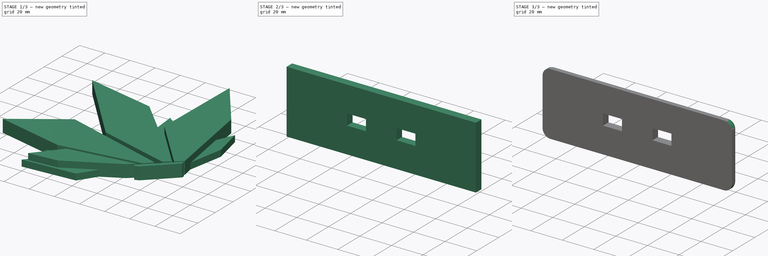
[diagram: build sequence overview — one tinted view per stage of 3, left to right]
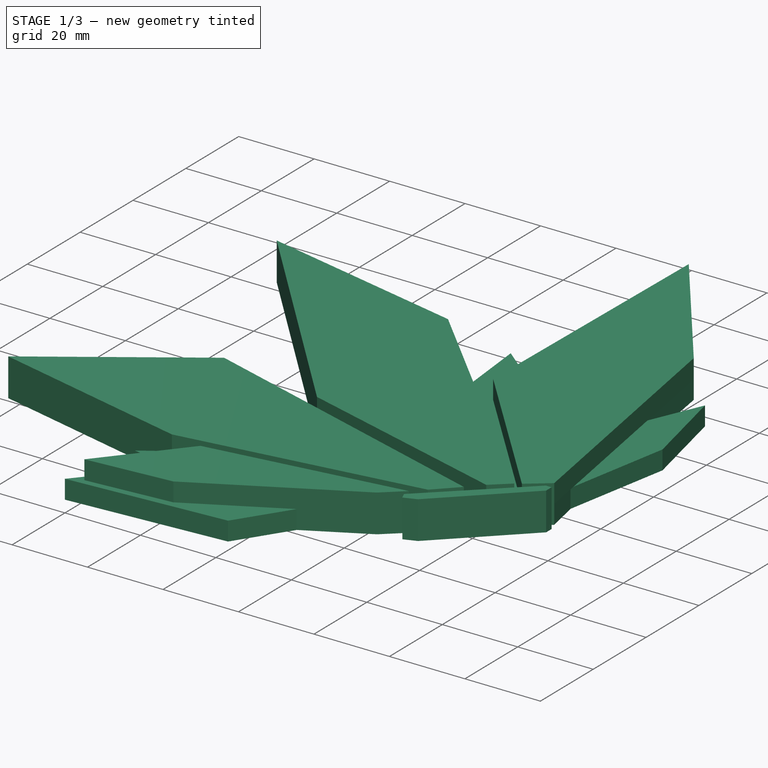
[diagram: stage 1 of 3 — iso view after this stage's code; geometry added in this stage tinted green]
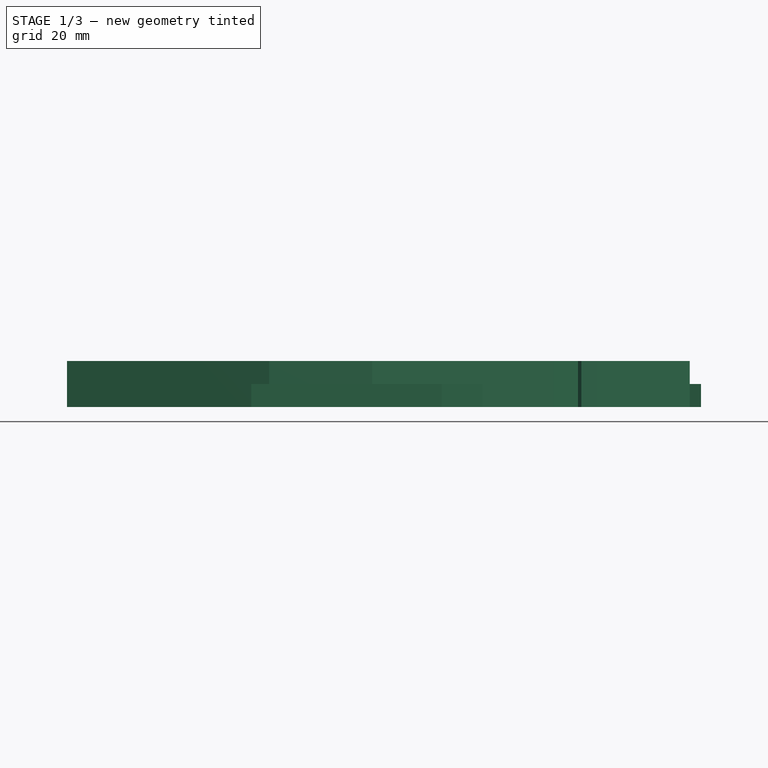
[diagram: stage 1 of 3 — front view after this stage's code; geometry added in this stage tinted green]
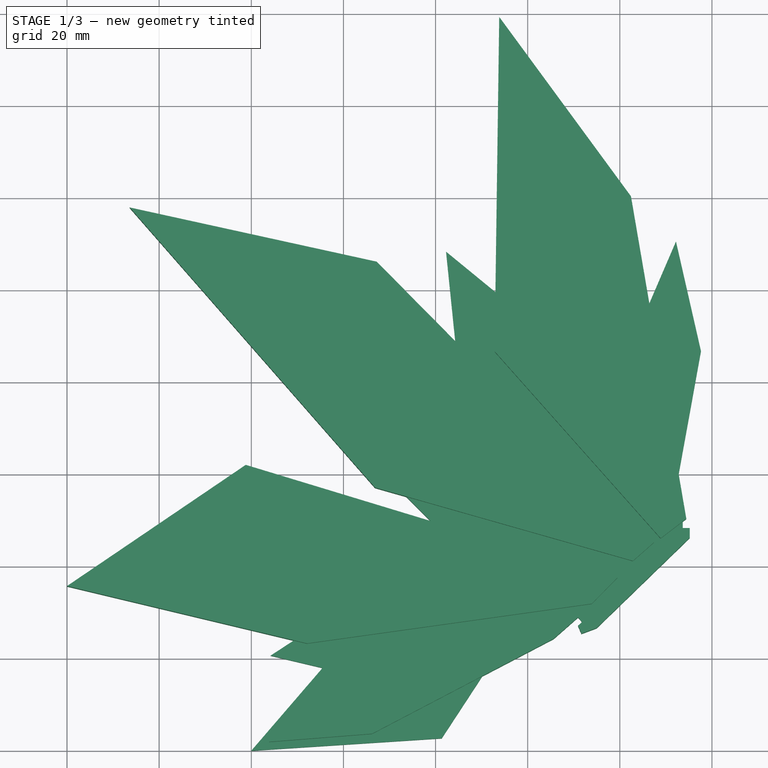
[diagram: stage 1 of 3 — top view after this stage's code; geometry added in this stage tinted green]
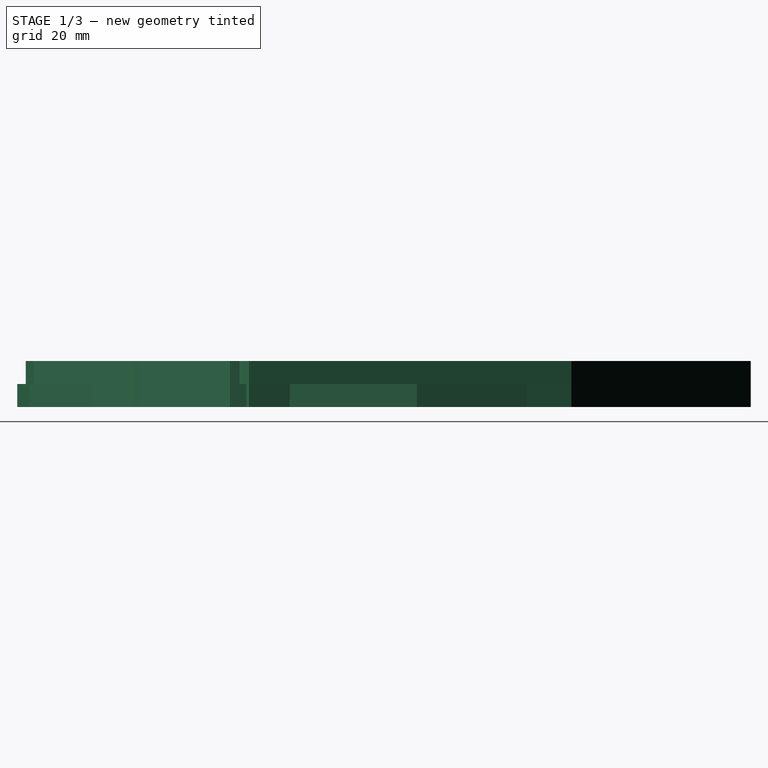
[diagram: stage 1 of 3 — right view after this stage's code; geometry added in this stage tinted green]
FCSTD DOCUMENT  (FreeCAD 0.21R33771 (Git))
Label: Project_Wingman_Cromson1_Emblem
License: All rights reserved
LicenseURL: https://en.wikipedia.org/wiki/All_rights_reserved
objects: Sketcher::SketchObject×4, PartDesign::Pad×4, PartDesign::Body×2, PartDesign::SubShapeBinder×2, PartDesign::Fillet×2, Image::ImagePlane×1
note: 20 computed .brp shape members not serialized (recipe doc carries the construction recipe); baked Part::Feature solids carry a one-line shape summary decoded from their .brp

FEATURE [Image::ImagePlane] Crimson_1_emblem
  Placement = pos=(34.5,79.5,0) rot=(0,0,1;0rad)
  XSize = 159.259
  YSize = 159.259
FEATURE [Sketcher::SketchObject] Sketch
  FullyConstrained = true
  MapMode = 5
  Support = -> [XY_Plane]
  sketch-geometry (33):
    g0: LineSegment StartX=1.8e-15 StartY=0 StartZ=0 EndX=41.3422 EndY=2.69522 EndZ=0
    g1: LineSegment StartX=41.3422 StartY=2.69522 StartZ=0 EndX=50.1306 EndY=16.1253 EndZ=0
    g2: LineSegment StartX=50.1306 StartY=16.1253 StartZ=0 EndX=65.6424 EndY=24.2484 EndZ=0
    g3: LineSegment StartX=65.6424 StartY=24.2484 StartZ=0 EndX=70.9471 EndY=28.9071 EndZ=0
    g4: LineSegment StartX=70.9471 StartY=28.9071 StartZ=0 EndX=71.8248 EndY=27.9078 EndZ=0
    g5: LineSegment StartX=71.8248 StartY=27.9078 StartZ=0 EndX=70.9259 EndY=27.0536 EndZ=0
    g6: LineSegment StartX=70.9259 StartY=27.0536 StartZ=0 EndX=71.6687 EndY=25.3484 EndZ=0
    g7: LineSegment StartX=71.6687 StartY=25.3484 StartZ=0 EndX=74.968 EndY=26.5754 EndZ=0
    g8: LineSegment StartX=74.968 StartY=26.5754 StartZ=0 EndX=95.187 EndY=46.1758 EndZ=0
    g9: LineSegment StartX=95.187 StartY=46.1758 StartZ=0 EndX=95.187 EndY=48.2558 EndZ=0
    g10: LineSegment StartX=95.187 StartY=48.2558 StartZ=0 EndX=93.667 EndY=48.2558 EndZ=0
    g11: LineSegment StartX=93.667 StartY=48.2558 StartZ=0 EndX=93.667 EndY=49.7358 EndZ=0
    g12: LineSegment StartX=93.667 StartY=49.7358 StartZ=0 EndX=94.436 EndY=50.3105 EndZ=0
    g13: LineSegment StartX=94.436 StartY=50.3105 StartZ=0 EndX=92.6104 EndY=59.1029 EndZ=0
    g14: LineSegment StartX=92.6104 StartY=59.1029 StartZ=0 EndX=97.622 EndY=86.7626 EndZ=0
    g15: LineSegment StartX=97.622 StartY=86.7626 StartZ=0 EndX=92.1952 EndY=110.572 EndZ=0
    g16: LineSegment StartX=92.1952 StartY=110.572 StartZ=0 EndX=86.2337 EndY=96.7094 EndZ=0
    g17: LineSegment StartX=86.2337 StartY=96.7094 StartZ=0 EndX=82.4223 EndY=120.293 EndZ=0
    g18: LineSegment StartX=82.4223 StartY=120.293 StartZ=0 EndX=53.823 EndY=159.241 EndZ=0
    g19: LineSegment StartX=53.823 StartY=159.241 StartZ=0 EndX=53.0003 EndY=99.5766 EndZ=0
    g20: LineSegment StartX=53.0003 StartY=99.5766 StartZ=0 EndX=42.2842 EndY=108.351 EndZ=0
    g21: LineSegment StartX=42.2842 StartY=108.351 StartZ=0 EndX=44.2911 EndY=88.7633 EndZ=0
    g22: LineSegment StartX=44.2911 StartY=88.7633 StartZ=0 EndX=27.2329 EndY=106.098 EndZ=0
    g23: LineSegment StartX=27.2329 StartY=106.098 StartZ=0 EndX=-26.4101 EndY=117.872 EndZ=0
    g24: LineSegment StartX=-26.4101 StartY=117.872 StartZ=0 EndX=26.8556 EndY=57.0487 EndZ=0
    g25: LineSegment StartX=26.8556 StartY=57.0487 StartZ=0 EndX=33.6368 EndY=55.1209 EndZ=0
    g26: LineSegment StartX=33.6368 StartY=55.1209 StartZ=0 EndX=38.9971 EndY=49.7756 EndZ=0
    g27: LineSegment StartX=38.9971 StartY=49.7756 StartZ=0 EndX=-1.20076 EndY=61.981 EndZ=0
    g28: LineSegment StartX=-1.20076 StartY=61.981 StartZ=0 EndX=-40.0019 EndY=35.6711 EndZ=0
    g29: LineSegment StartX=-40.0019 StartY=35.6711 StartZ=0 EndX=9.18116 EndY=23.9087 EndZ=0
    g30: LineSegment StartX=9.18116 StartY=23.9087 StartZ=0 EndX=4.17274 EndY=20.6412 EndZ=0
    g31: LineSegment StartX=4.17274 StartY=20.6412 StartZ=0 EndX=15.464 EndY=17.9659 EndZ=0
    g32: LineSegment StartX=15.464 StartY=17.9659 StartZ=0 EndX=1.8e-15 EndY=0 EndZ=0
  constraints (98):
    c: Coincident(g-1,g0)
    c: Coincident(g0,g1)
    c: Coincident(g1,g2)
    c: Coincident(g2,g3)
    c: Coincident(g3,g4)
    c: Coincident(g4,g5)
    c: Coincident(g5,g6)
    c: Coincident(g6,g7)
    c: Coincident(g7,g8)
    c: Coincident(g8,g9)
    c: Vertical(g9)
    c: Coincident(g9,g10)
    c: Horizontal(g10)
    c: Coincident(g10,g11)
    c: Vertical(g11)
    c: Coincident(g11,g12)
    c: Coincident(g12,g13)
    c: Coincident(g13,g14)
    c: Coincident(g14,g15)
    c: Coincident(g15,g16)
    c: Coincident(g16,g17)
    c: Coincident(g17,g18)
    c: Coincident(g18,g19)
    c: Coincident(g19,g20)
    c: Coincident(g20,g21)
    c: Coincident(g21,g22)
    c: Coincident(g22,g23)
    c: Coincident(g23,g24)
    c: Coincident(g24,g25)
    c: Coincident(g25,g26)
    c: Coincident(g26,g27)
    c: Coincident(g27,g28)
    c: Coincident(g28,g29)
    c: Coincident(g29,g30)
    c: Coincident(g30,g31)
    c: Coincident(g31,g32)
    c: Coincident(g32,g0)
    c: Angle(g3,g4) = 1.5708
    c: Angle(g6,g5) = 1.91986
    c: Angle(g7,g6) = 1.6256
    c: Angle(g8,g7) = 2.72778
    c: Angle(g9,g8) = 2.34066
    c: Angle(g11,g12) = 2.21255
    c: Angle(g13,g12) = 2.00783
    c: Angle(g3,g2) = 2.90336
    c: Angle(g1,g2) = 2.63265
    c: Angle(g1,g0) = 2.21535
    c: Angle(g0,g32) = 0.794997
    c: Angle(g31,g32) = 1.09275
    c: Angle(g31,g30) = 0.810705
    c: Angle(g29,g30) = 0.8128
    c: Angle(g29,g28) = 0.830602
    c: Angle(g23,g22) = 2.56424
    c: Angle(g21,g22) = 0.675268
    c: Angle(g21,g20) = 0.782606
    c: Angle(g19,g20) = 0.898495
    c: Angle(g19,g18) = 0.647168
    c: Angle(g18,g17) = 2.66843
    c: Angle(g16,g17) = 0.566359
    c: Angle(g16,g15) = 0.630238
    c: Angle(g15,g14) = 2.73825
    c: Angle(g13,g14) = 2.75762
    c: Distance(g0) = 41.43
    c: Distance(g1) = 16.05
    c: Distance(g2) = 17.51
    c: Distance(g3) = 7.06
    c: Distance(g4) = 1.33
    c: Distance(g5) = 1.24
    c: Distance(g6) = 1.86
    c: Distance(g7) = 3.52
    c: Distance(g8) = 28.16
    c: Distance(g9) = 2.08
    c: Distance(g10) = 1.52
    c: Distance(g11) = 1.48
    c: Distance(g12) = 0.96
    c: Distance(g13) = 8.98
    c: Distance(g14) = 28.11
    c: Distance(g15) = 24.42
    c: Distance(g17) = 23.89
    c: Distance(g16) = 15.09
    c: Distance(g18) = 48.32
    c: Distance(g19) = 59.67
    c: Distance(g20) = 13.85
    c: Distance(g21) = 19.69
    c: Distance(g22) = 24.32
    c: Distance(g23) = 54.92
    c: Distance(g28) = 46.88
    c: Distance(g29) = 50.57
    c: Distance(g30) = 5.98
    c: Angle(g28,g27) = 2.25095
    c: Distance(g27) = 42.01
    c: Distance(g24) = 80.85
    c: Angle(g24,g23) = 0.635474
    c: Angle(g25,g26) = 2.63457
    c: Angle(g26,g27) = 0.489216
    c: Distance(g26) = 7.57
    c: Distance(g25) = 7.05
    c: Angle(g25,g24) = 2.56703
FEATURE [PartDesign::Pad] Pad  label="MainBody"
  Direction = (0,0,1)
  Length = 5
  Length2 = 10
  Profile = -> Sketch
  ReferenceAxis = -> Sketch [N_Axis]
  Type = 0
FEATURE [Sketcher::SketchObject] Sketch001
  ExternalGeometry = -> [Pad]
  FullyConstrained = true
  MapMode = 5
  Placement = pos=(0,0,5) rot=(0,0,1;0rad)
  Support = -> [Pad]
  sketch-geometry (26):
    g0: LineSegment StartX=93.667 StartY=48.2558 StartZ=0 EndX=70.9259 EndY=27.0536 EndZ=0
    g1: LineSegment StartX=70.9259 StartY=27.0536 StartZ=0 EndX=71.6687 EndY=25.3484 EndZ=0
    g2: LineSegment StartX=71.6687 StartY=25.3484 StartZ=0 EndX=74.968 EndY=26.5754 EndZ=0
    g3: LineSegment StartX=74.968 StartY=26.5754 StartZ=0 EndX=95.187 EndY=46.1758 EndZ=0
    g4: LineSegment StartX=95.187 StartY=46.1758 StartZ=0 EndX=95.187 EndY=48.2558 EndZ=0
    g5: LineSegment StartX=95.187 StartY=48.2558 StartZ=0 EndX=93.667 EndY=48.2558 EndZ=0
    g6: LineSegment StartX=65.6424 StartY=24.2484 StartZ=0 EndX=26.2207 EndY=3.60423 EndZ=0
    g7: LineSegment StartX=26.2207 StartY=3.60423 StartZ=0 EndX=3.85957 EndY=1.8483 EndZ=0
    g8: LineSegment StartX=3.85957 StartY=1.8483 StartZ=0 EndX=20.533 EndY=21.9673 EndZ=0
    g9: LineSegment StartX=20.533 StartY=21.9673 StartZ=0 EndX=70.9471 EndY=28.9071 EndZ=0
    g10: LineSegment StartX=70.9471 StartY=28.9071 StartZ=0 EndX=65.6424 EndY=24.2484 EndZ=0
    g11: LineSegment StartX=-1.20076 StartY=61.981 StartZ=0 EndX=79.482 EndY=37.483 EndZ=0
    g12: LineSegment StartX=-1.20076 StartY=61.981 StartZ=0 EndX=-40.0019 EndY=35.6711 EndZ=0
    g13: LineSegment StartX=-40.0019 StartY=35.6711 StartZ=0 EndX=12.0989 EndY=23.2109 EndZ=0
    g14: LineSegment StartX=12.0989 StartY=23.2109 StartZ=0 EndX=73.9001 EndY=31.8305 EndZ=0
    g15: LineSegment StartX=73.9001 StartY=31.8305 StartZ=0 EndX=79.482 EndY=37.483 EndZ=0
    g16: LineSegment StartX=87.4341 StartY=45.1737 StartZ=0 EndX=27.2329 EndY=106.098 EndZ=0
    g17: LineSegment StartX=27.2329 StartY=106.098 StartZ=0 EndX=-26.4101 EndY=117.872 EndZ=0
    g18: LineSegment StartX=-26.4101 StartY=117.872 StartZ=0 EndX=26.8556 EndY=57.0487 EndZ=0
    g19: LineSegment StartX=26.8556 StartY=57.0487 StartZ=0 EndX=82.8469 EndY=41.1309 EndZ=0
    g20: LineSegment StartX=87.4341 StartY=45.1737 StartZ=0 EndX=82.8469 EndY=41.1309 EndZ=0
    g21: LineSegment StartX=94.436 StartY=50.3105 StartZ=0 EndX=82.4223 EndY=120.293 EndZ=0
    g22: LineSegment StartX=82.4223 StartY=120.293 StartZ=0 EndX=53.823 EndY=159.241 EndZ=0
    g23: LineSegment StartX=53.823 StartY=159.241 StartZ=0 EndX=52.8216 EndY=86.6178 EndZ=0
    g24: LineSegment StartX=52.8216 StartY=86.6178 StartZ=0 EndX=88.8641 EndY=46.0365 EndZ=0
    g25: LineSegment StartX=88.8641 StartY=46.0365 StartZ=0 EndX=94.436 EndY=50.3105 EndZ=0
  constraints (62):
    c: Coincident(g-15,g0)
    c: Coincident(g0,g-11)
    c: Coincident(g0,g1)
    c: Coincident(g1,g-12)
    c: Coincident(g1,g2)
    c: Coincident(g2,g-13)
    c: Coincident(g2,g3)
    c: Coincident(g3,g-14)
    c: Coincident(g3,g4)
    c: Coincident(g4,g-15)
    c: Coincident(g4,g5)
    c: Coincident(g5,g0)
    c: Coincident(g6,g-10)
    c: PointOnObject(g-10,g6)
    c: Coincident(g6,g7)
    c: Coincident(g7,g8)
    c: Coincident(g8,g9)
    c: Coincident(g9,g10)
    c: Coincident(g10,g6)
    c: Coincident(g-8,g11)
    c: Coincident(g11,g12)
    c: Coincident(g12,g-9)
    c: Coincident(g12,g13)
    c: Coincident(g13,g14)
    c: PointOnObject(g-9,g13)
    c: Coincident(g15,g14)
    c: Coincident(g11,g15)
    c: PointOnObject(g-7,g11)
    c: Angle(g6,g7) = 2.73755
    c: Angle(g7,g8) = 0.800408
    c: Distance(g6) = 44.5
    c: Distance(g7) = 22.43
    c: Distance(g8) = 26.13
    c: Distance(g13) = 53.57
    c: Angle(g14,g13) = 2.76827
    c: Angle(g11,g15) = 1.08647
    c: Distance(g11) = 84.32
    c: Coincident(g16,g-4)
    c: Coincident(g16,g17)
    c: Coincident(g17,g-5)
    c: Coincident(g17,g18)
    c: Coincident(g18,g-6)
    c: Coincident(g19,g18)
    c: Coincident(g20,g16)
    c: Coincident(g20,g19)
    c: PointOnObject(g-6,g19)
    c: Distance(g16) = 85.65
    c: Distance(g19) = 58.21
    c: Angle(g20,g19) = 2.14222
    c: Coincident(g21,g-18)
    c: Coincident(g21,g-17)
    c: Coincident(g21,g22)
    c: Coincident(g22,g-17)
    c: Coincident(g22,g23)
    c: Coincident(g23,g24)
    c: Coincident(g24,g25)
    c: Coincident(g25,g21)
    c: PointOnObject(g-16,g23)
    c: Angle(g24,g23) = 2.40157
    c: Angle(g25,g24) = 1.6427
    c: Distance(g23) = 72.63
    c: Coincident(g9,g-19)
FEATURE [PartDesign::Pad] Pad001  label="FrontBody"
  BaseFeature = -> Pad
  Direction = (0,0,1)
  Length = 5
  Length2 = 10
  Profile = -> Sketch001
  ReferenceAxis = -> Sketch001 [N_Axis]
  Type = 0
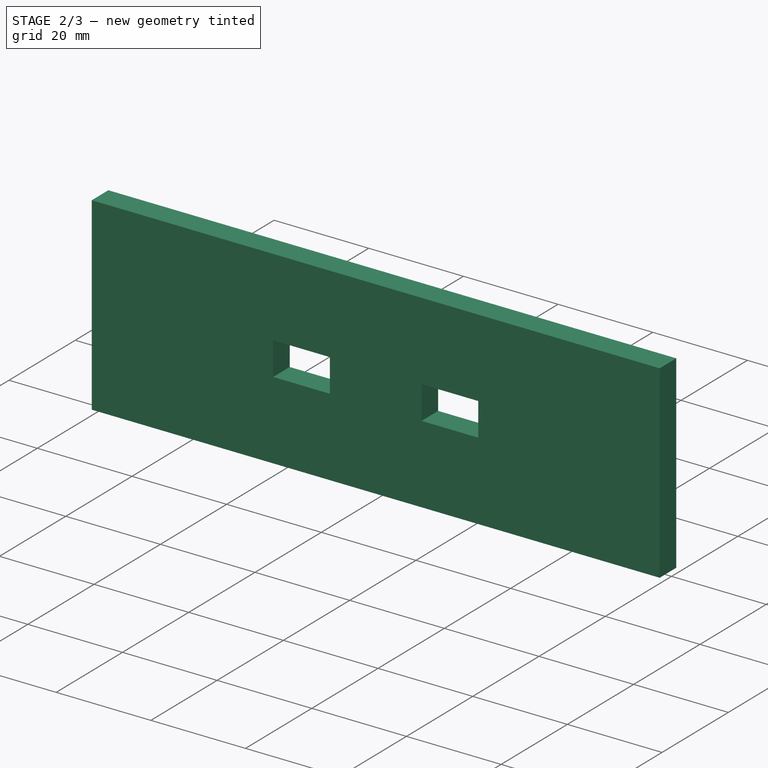
[diagram: stage 2 of 3 — iso view after this stage's code; geometry added in this stage tinted green]
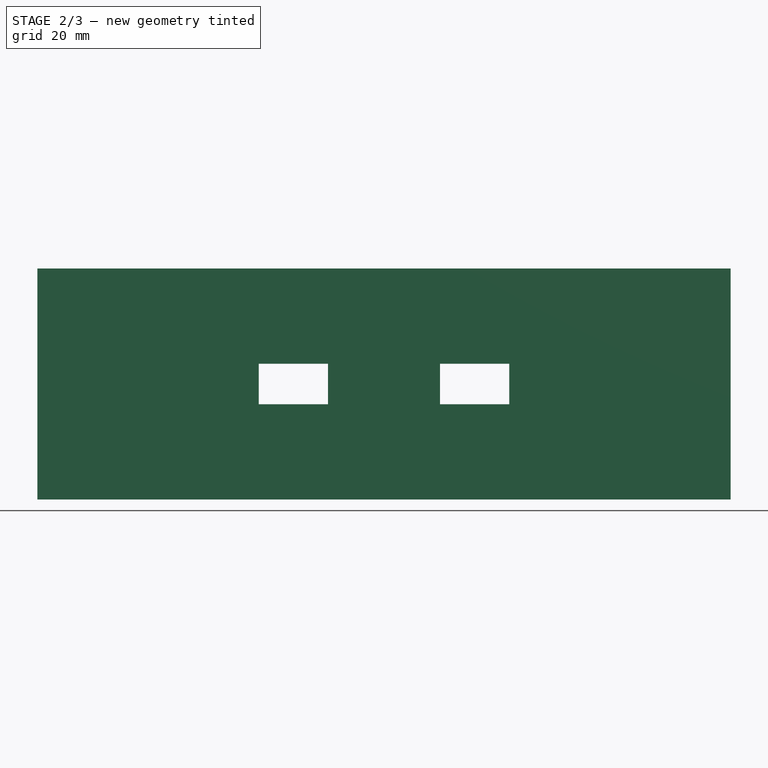
[diagram: stage 2 of 3 — front view after this stage's code; geometry added in this stage tinted green]
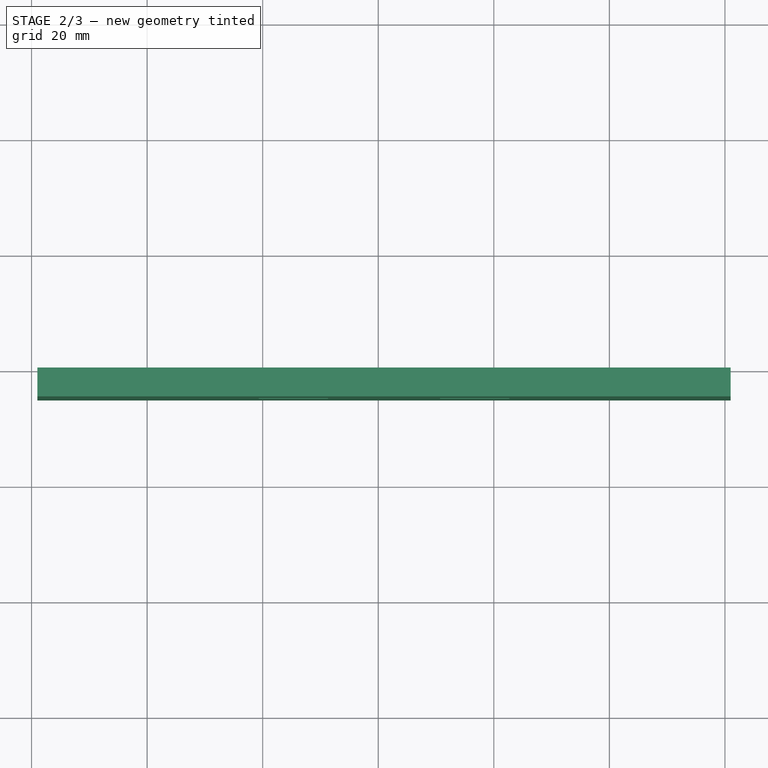
[diagram: stage 2 of 3 — top view after this stage's code; geometry added in this stage tinted green]
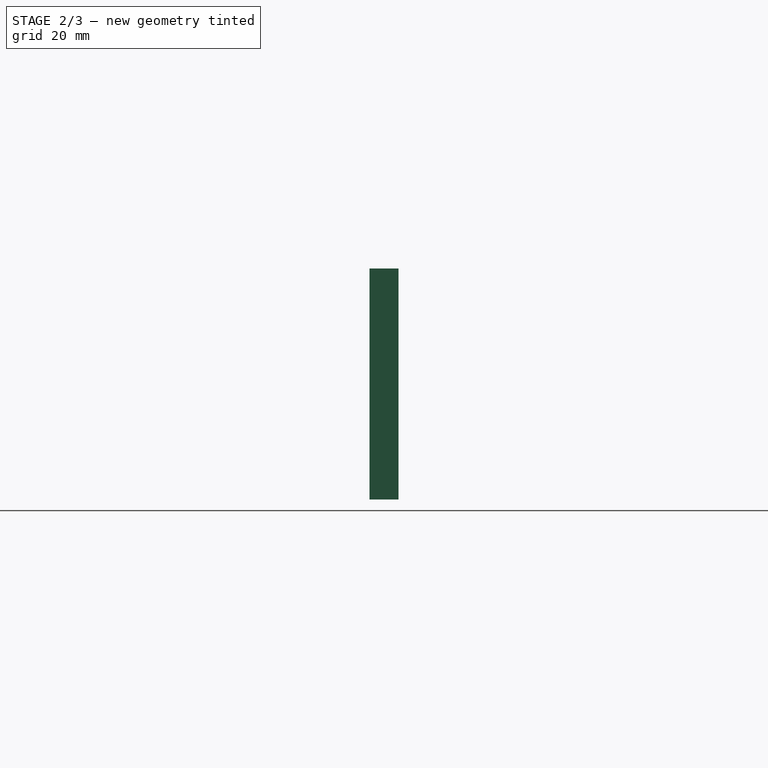
[diagram: stage 2 of 3 — right view after this stage's code; geometry added in this stage tinted green]
FEATURE [Sketcher::SketchObject] Sketch002
  ExternalGeometry = -> [Pad001]
  FullyConstrained = true
  MapMode = 5
  Placement = pos=(0,-1e-16,0) rot=(0.998941,0.032527,0.032527;1.57186rad)
  Support = -> [Pad001]
  sketch-geometry (8):
    g0: LineSegment StartX=1.8e-15 StartY=5 StartZ=0 EndX=10 EndY=5 EndZ=0
    g1: LineSegment StartX=10 StartY=5 StartZ=0 EndX=10 EndY=0 EndZ=0
    g2: LineSegment StartX=10 StartY=0 StartZ=0 EndX=0 EndY=0 EndZ=0
    g3: LineSegment StartX=0 StartY=0 StartZ=0 EndX=1.8e-15 EndY=5 EndZ=0
    g4: LineSegment StartX=41.43 StartY=5 StartZ=0 EndX=31.43 EndY=5 EndZ=0
    g5: LineSegment StartX=31.43 StartY=5 StartZ=0 EndX=31.43 EndY=0 EndZ=0
    g6: LineSegment StartX=31.43 StartY=0 StartZ=0 EndX=41.43 EndY=0 EndZ=0
    g7: LineSegment StartX=41.43 StartY=0 StartZ=0 EndX=41.43 EndY=5 EndZ=0
  constraints (20):
    c: Coincident(g0,g1)
    c: Coincident(g1,g2)
    c: Coincident(g2,g3)
    c: Coincident(g3,g0)
    c: Horizontal(g0)
    c: Horizontal(g2)
    c: Vertical(g1)
    c: Coincident(g0,g-4)
    c: Coincident(g2,g-4)
    c: DistanceX(g0,g0) = 10
    c: Coincident(g4,g5)
    c: Coincident(g5,g6)
    c: Coincident(g6,g7)
    c: Coincident(g7,g4)
    c: Horizontal(g4)
    c: Horizontal(g6)
    c: Vertical(g5)
    c: Coincident(g4,g-3)
    c: Coincident(g6,g-3)
    c: DistanceX(g4,g4) = 10
FEATURE [PartDesign::Pad] Pad002  label="StandMountBody"
  BaseFeature = -> Pad001
  Direction = (0.0650548,-0.997882,-1e-16)
  Length = 5
  Length2 = 10
  Profile = -> Sketch002
  ReferenceAxis = -> Sketch002 [N_Axis]
  Type = 0
FEATURE [PartDesign::Body] Body  label="Crimson1"
  Group = -> [Sketch,Pad,Sketch001,Pad001,Sketch002,Pad002]
  Origin = -> Origin
  Tip = -> Pad002
FEATURE [PartDesign::SubShapeBinder] Binder001
  BindCopyOnChange = 0
  BindMode = 0
  ClaimChildren = false
  Context = -> Body001 [Binder001.]
  Fuse = false
  MakeFace = true
  OffsetFill = false
  OffsetIntersection = false
  OffsetJoinType = 0
  OffsetOpenResult = false
  PartialLoad = false
  Relative = true
  Support = -> [Body[Pad002.Face58]]
  _Version = 2
FEATURE [PartDesign::SubShapeBinder] Binder
  BindCopyOnChange = 0
  BindMode = 0
  ClaimChildren = false
  Context = -> Body001 [Binder.]
  Fuse = false
  MakeFace = true
  OffsetFill = false
  OffsetIntersection = false
  OffsetJoinType = 0
  OffsetOpenResult = false
  PartialLoad = false
  Relative = true
  Support = -> [Body[Pad002.Face41]]
  _Version = 2
FEATURE [Sketcher::SketchObject] Sketch003
  ExternalGeometry = -> [Binder001,Binder]
  FullyConstrained = true
  MapMode = 5
  Placement = pos=(0,0,0) rot=(1,0,0;1.5708rad)
  Support = -> [XZ_Plane001]
  sketch-geometry (18):
    g0: GeomPoint X=36.6781 Y=2.5 Z=0
    g1: GeomPoint X=5.31468 Y=2.5 Z=0
    g2: LineSegment StartX=30.6887 StartY=6 StartZ=0 EndX=30.6887 EndY=-1 EndZ=0
    g3: LineSegment StartX=30.6887 StartY=-1 StartZ=0 EndX=42.6675 EndY=-1 EndZ=0
    g4: LineSegment StartX=42.6675 StartY=-1 StartZ=0 EndX=42.6675 EndY=6 EndZ=0
    g5: LineSegment StartX=42.6675 StartY=6 StartZ=0 EndX=30.6887 EndY=6 EndZ=0
    g6: GeomPoint X=36.6781 Y=2.5 Z=0
    g7: LineSegment StartX=-0.674726 StartY=6 StartZ=0 EndX=-0.674726 EndY=-1 EndZ=0
    g8: LineSegment StartX=-0.674726 StartY=-1 StartZ=0 EndX=11.3041 EndY=-1 EndZ=0
    g9: LineSegment StartX=11.3041 StartY=-1 StartZ=0 EndX=11.3041 EndY=6 EndZ=0
    g10: LineSegment StartX=11.3041 StartY=6 StartZ=0 EndX=-0.674726 EndY=6 EndZ=0
    g11: GeomPoint X=5.31468 Y=2.5 Z=0
    g12: GeomPoint X=20.9964 Y=2.5 Z=0
    g13: LineSegment StartX=-39.0036 StartY=-17.5 StartZ=0 EndX=-39.0036 EndY=22.5 EndZ=0
    g14: LineSegment StartX=-39.0036 StartY=22.5 StartZ=0 EndX=80.9964 EndY=22.5 EndZ=0
    g15: LineSegment StartX=80.9964 StartY=22.5 StartZ=0 EndX=80.9964 EndY=-17.5 EndZ=0
    g16: LineSegment StartX=80.9964 StartY=-17.5 StartZ=0 EndX=-39.0036 EndY=-17.5 EndZ=0
    g17: GeomPoint X=20.9964 Y=2.5 Z=0
  constraints (39):
    c: Symmetric(g-3,g-4,g1)
    c: Symmetric(g-5,g-6,g0)
    c: Coincident(g2,g3)
    c: Coincident(g3,g4)
    c: Coincident(g4,g5)
    c: Coincident(g5,g2)
    c: Horizontal(g3)
    c: Horizontal(g5)
    c: Vertical(g2)
    c: Vertical(g4)
    c: Symmetric(g3,g2,g6)
    c: Coincident(g6,g0)
    c: Coincident(g7,g8)
    c: Coincident(g8,g9)
    c: Coincident(g9,g10)
    c: Coincident(g10,g7)
    c: Horizontal(g8)
    c: Horizontal(g10)
    c: Vertical(g7)
    c: Vertical(g9)
    c: Symmetric(g8,g7,g11)
    c: Coincident(g11,g1)
    c: DistanceX(g-4,g8) = 1
    c: DistanceY(g8,g-4) = 1
    c: Equal(g9,g2)
    c: Equal(g3,g8)
    c: Symmetric(g9,g2,g12)
    c: Coincident(g13,g14)
    c: Coincident(g14,g15)
    c: Coincident(g15,g16)
    c: Coincident(g16,g13)
    c: Horizontal(g14)
    c: Horizontal(g16)
    c: Vertical(g13)
    c: Vertical(g15)
    c: Symmetric(g14,g13,g17)
    c: Coincident(g17,g12)
    c: DistanceY(g13,g13) = 40
    c: DistanceX(g16,g16) = 120
FEATURE [PartDesign::Pad] Pad003
  Direction = (0,-1,2e-16)
  Length = 5
  Length2 = 10
  Placement = pos=(0,0,0) rot=(1,0,0;1.5708rad)
  Profile = -> Sketch003
  ReferenceAxis = -> Sketch003 [N_Axis]
  Type = 0
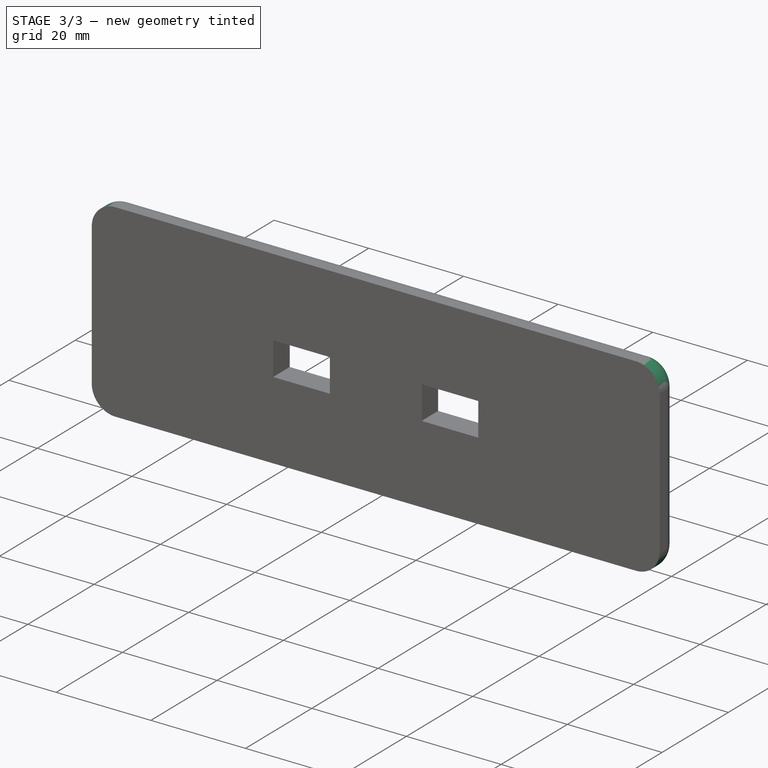
[diagram: stage 3 of 3 — iso view after this stage's code; geometry added in this stage tinted green]
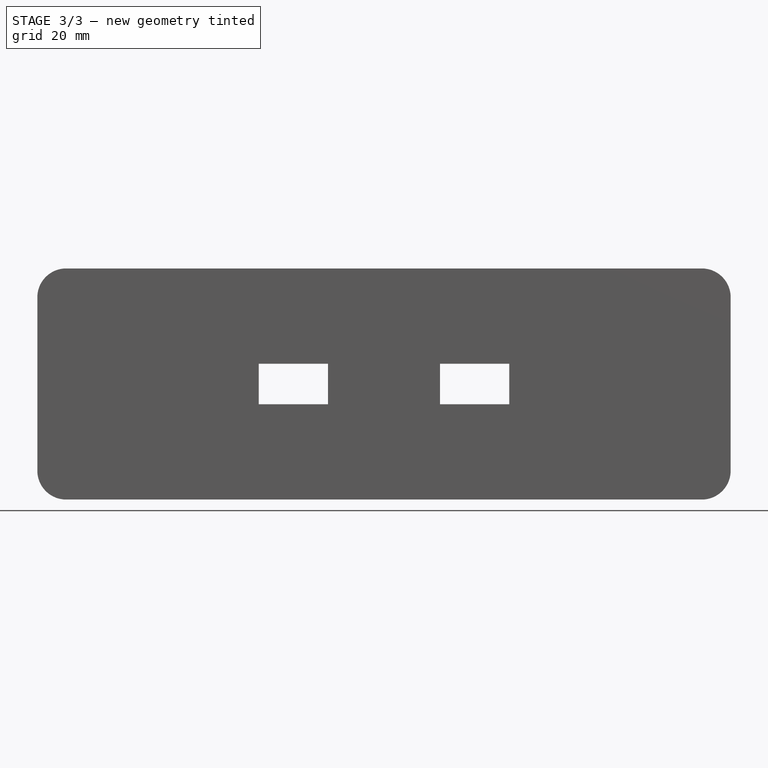
[diagram: stage 3 of 3 — front view after this stage's code; geometry added in this stage tinted green]
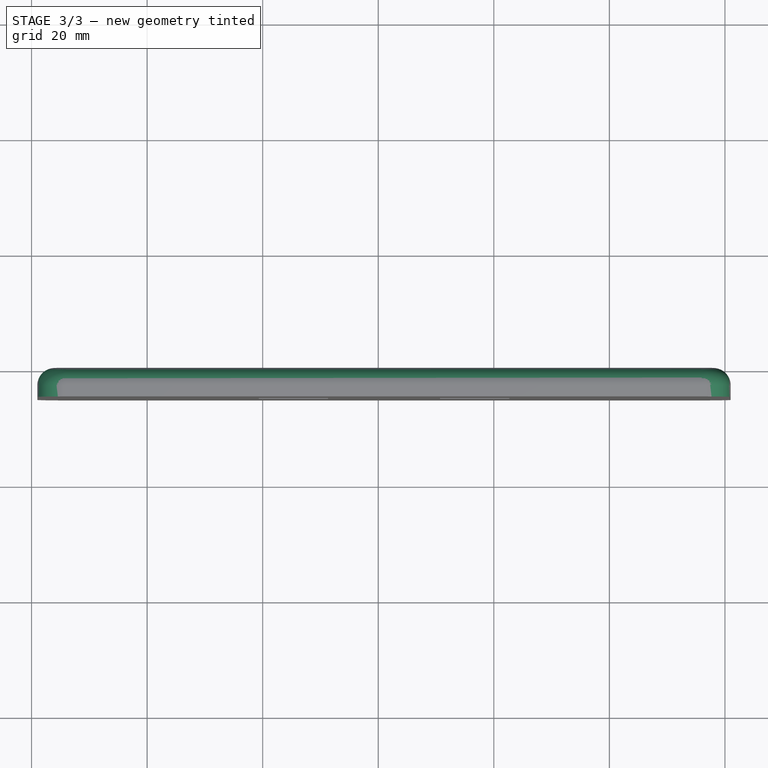
[diagram: stage 3 of 3 — top view after this stage's code; geometry added in this stage tinted green]
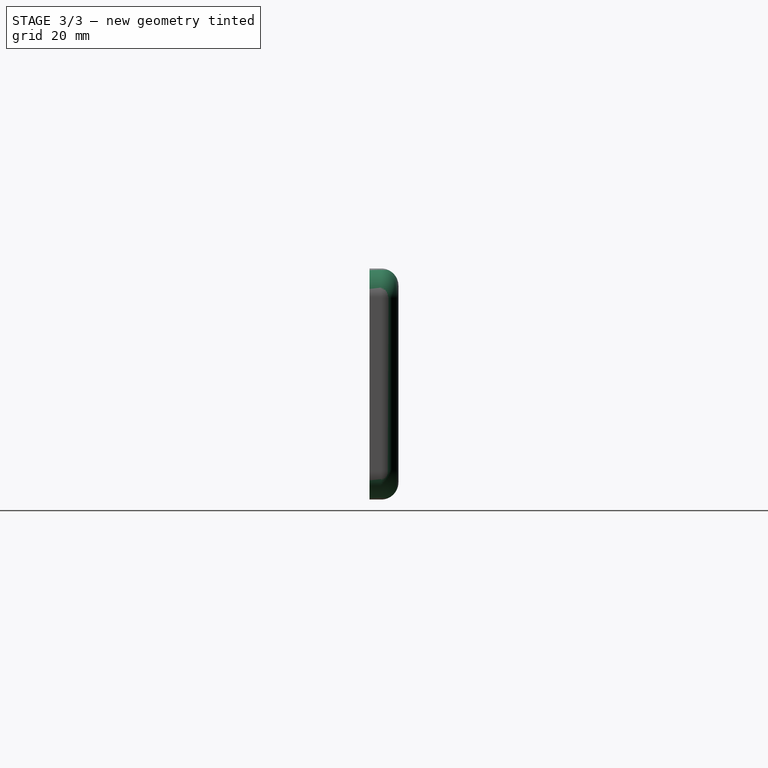
[diagram: stage 3 of 3 — right view after this stage's code; geometry added in this stage tinted green]
FEATURE [PartDesign::Fillet] Fillet
  Base = -> Pad003 [Edge5,Edge8,Edge1,Edge2]
  BaseFeature = -> Pad003
  Placement = pos=(0,0,0) rot=(1,0,0;1.5708rad)
  Radius = 5
  SupportTransform = false
  UseAllEdges = false
FEATURE [PartDesign::Fillet] Fillet001
  Base = -> Fillet [Edge1,Edge5,Edge7,Edge8,Edge6,Edge10,Edge11,Edge9]
  BaseFeature = -> Fillet
  Placement = pos=(0,0,0) rot=(1,0,0;1.5708rad)
  Radius = 3
  SupportTransform = false
  UseAllEdges = false
FEATURE [PartDesign::Body] Body001  label="Stand"
  Group = -> [Binder001,Binder,Sketch003,Pad003,Fillet,Fillet001]
  Origin = -> Origin001
  Tip = -> Fillet001
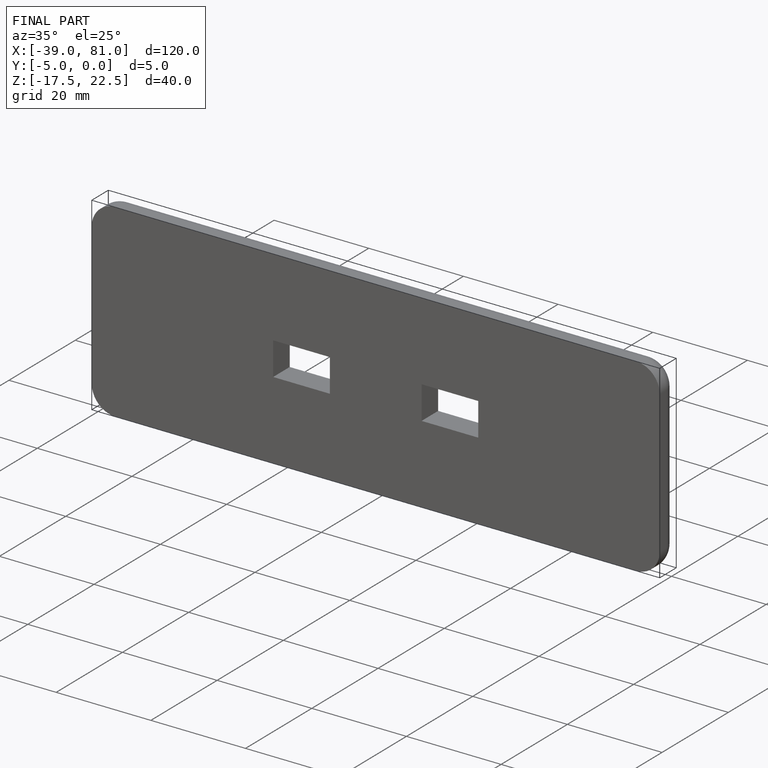
[diagram: finished part — iso view with bounding-box wireframe]
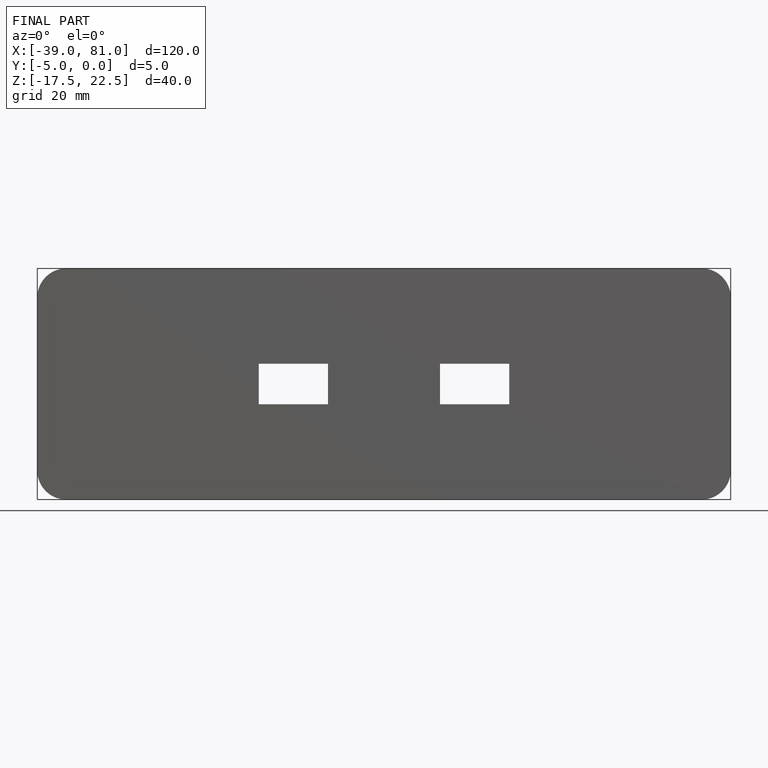
[diagram: finished part — front view with bounding-box wireframe]
